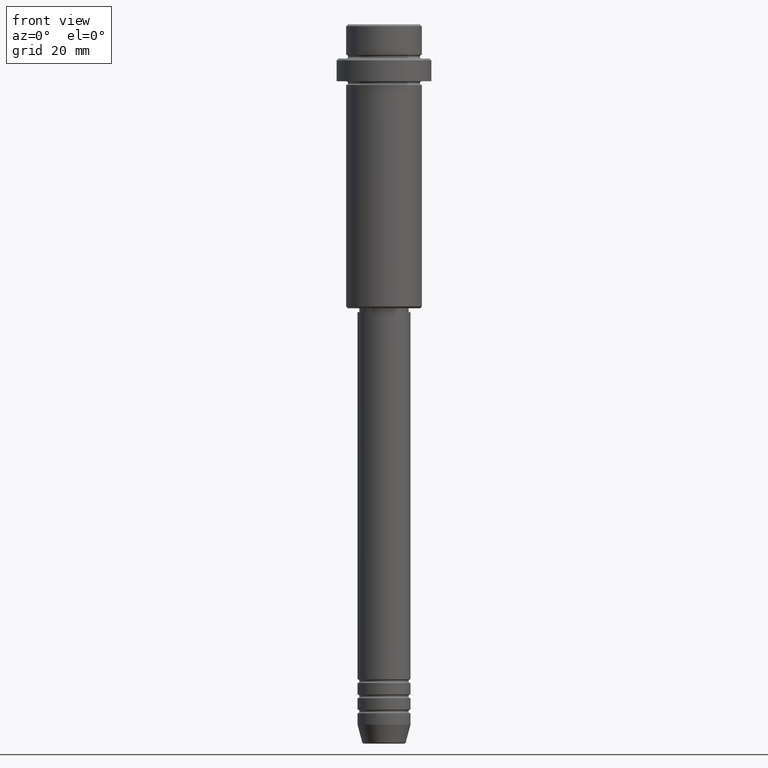
[diagram: clean part render]
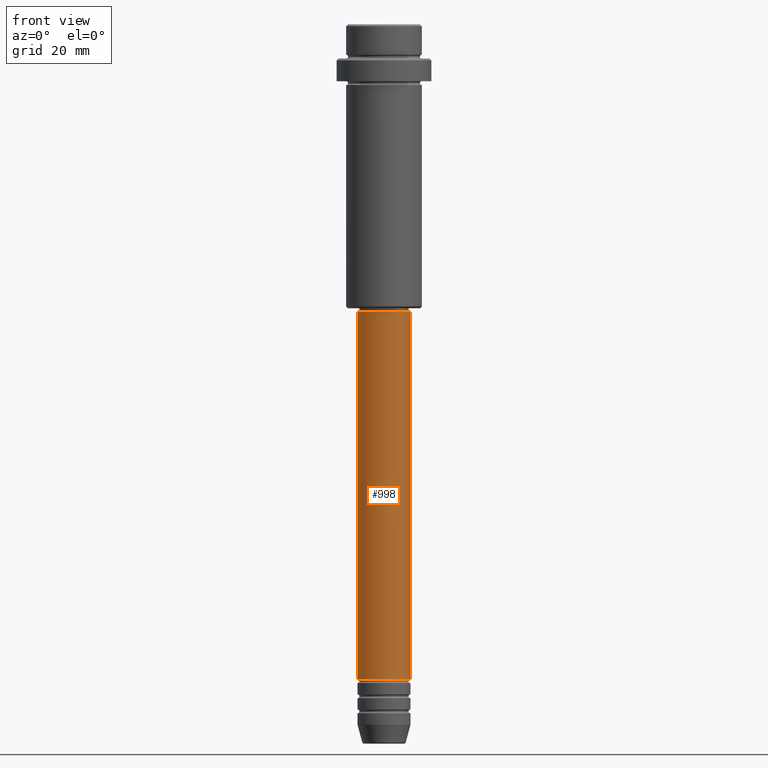
[diagram: same view with one face highlighted and labeled with its STEP entity id]
A machine part, front view. The second image highlights one B-rep face of the part: STEP entity #998.
In plain terms, the highlighted cylindrical surface (edge-blend (fillet) strip) has radius 7 mm, axis along (-0, -0, 1).
Its self-contained STEP definition (entity closure, byte-faithful):
#141 = DIRECTION ( 'NONE',  ( 1.000000000000000000, 0.000000000000000000, 0.000000000000000000 ) ) ;
#170 = EDGE_CURVE ( 'NONE', #557, #378, #776, .T. ) ;
#262 = CARTESIAN_POINT ( 'NONE',  ( -7.000000000000000000, 8.572527594031473190E-16, -172.9999999999999147 ) ) ;
#296 = DIRECTION ( 'NONE',  ( 1.000000000000000000, 0.000000000000000000, 0.000000000000000000 ) ) ;
#342 = VERTEX_POINT ( 'NONE', #806 ) ;
#351 = CARTESIAN_POINT ( 'NONE',  ( -7.000000000000000000, 8.572527594031473190E-16, 0.000000000000000000 ) ) ;
#378 = VERTEX_POINT ( 'NONE', #669 ) ;
#393 = DIRECTION ( 'NONE',  ( -0.000000000000000000, -0.000000000000000000, 1.000000000000000000 ) ) ;
#410 = CARTESIAN_POINT ( 'NONE',  ( 0.000000000000000000, 0.000000000000000000, -76.00000000000001421 ) ) ;
#499 = VECTOR ( 'NONE', #393, 1000.000000000000000 ) ;
#501 = LINE ( 'NONE', #1380, #499 ) ;
#514 = CARTESIAN_POINT ( 'NONE',  ( 0.000000000000000000, 0.000000000000000000, -172.9999999999999147 ) ) ;
#543 = CARTESIAN_POINT ( 'NONE',  ( 7.000000000000000000, 0.000000000000000000, -76.00000000000001421 ) ) ;
#557 = VERTEX_POINT ( 'NONE', #262 ) ;
#582 = EDGE_CURVE ( 'NONE', #342, #773, #804, .T. ) ;
#601 = VECTOR ( 'NONE', #678, 1000.000000000000000 ) ;
#669 = CARTESIAN_POINT ( 'NONE',  ( 7.000000000000000000, 0.000000000000000000, -172.9999999999999147 ) ) ;
#678 = DIRECTION ( 'NONE',  ( -0.000000000000000000, -0.000000000000000000, 1.000000000000000000 ) ) ;
#728 = DIRECTION ( 'NONE',  ( -0.000000000000000000, -0.000000000000000000, 1.000000000000000000 ) ) ;
#773 = VERTEX_POINT ( 'NONE', #543 ) ;
#776 = CIRCLE ( 'NONE', #1143, 7.000000000000000000 ) ;
#794 = CYLINDRICAL_SURFACE ( 'NONE', #1021, 7.000000000000000000 ) ;
#804 = CIRCLE ( 'NONE', #1106, 7.000000000000000000 ) ;
#806 = CARTESIAN_POINT ( 'NONE',  ( -7.000000000000000000, 8.572527594031473190E-16, -76.00000000000001421 ) ) ;
#807 = CARTESIAN_POINT ( 'NONE',  ( 0.000000000000000000, 0.000000000000000000, 0.000000000000000000 ) ) ;
#833 = ORIENTED_EDGE ( 'NONE', *, *, #170, .T. ) ;
#920 = EDGE_CURVE ( 'NONE', #557, #342, #1329, .T. ) ;
#959 = DIRECTION ( 'NONE',  ( -0.000000000000000000, -0.000000000000000000, 1.000000000000000000 ) ) ;
#976 = ORIENTED_EDGE ( 'NONE', *, *, #920, .F. ) ;
#998 = ADVANCED_FACE ( 'NONE', ( #1386 ), #794, .T. ) ;
#1021 = AXIS2_PLACEMENT_3D ( 'NONE', #807, #1235, #141 ) ;
#1091 = EDGE_LOOP ( 'NONE', ( #976, #833, #1358, #1310 ) ) ;
#1106 = AXIS2_PLACEMENT_3D ( 'NONE', #410, #959, #296 ) ;
#1143 = AXIS2_PLACEMENT_3D ( 'NONE', #514, #728, #1179 ) ;
#1179 = DIRECTION ( 'NONE',  ( 1.000000000000000000, 0.000000000000000000, 0.000000000000000000 ) ) ;
#1235 = DIRECTION ( 'NONE',  ( -0.000000000000000000, -0.000000000000000000, 1.000000000000000000 ) ) ;
#1302 = EDGE_CURVE ( 'NONE', #378, #773, #501, .T. ) ;
#1310 = ORIENTED_EDGE ( 'NONE', *, *, #582, .F. ) ;
#1329 = LINE ( 'NONE', #351, #601 ) ;
#1358 = ORIENTED_EDGE ( 'NONE', *, *, #1302, .T. ) ;
#1380 = CARTESIAN_POINT ( 'NONE',  ( 7.000000000000000000, 0.000000000000000000, 0.000000000000000000 ) ) ;
#1386 = FACE_OUTER_BOUND ( 'NONE', #1091, .T. ) ;